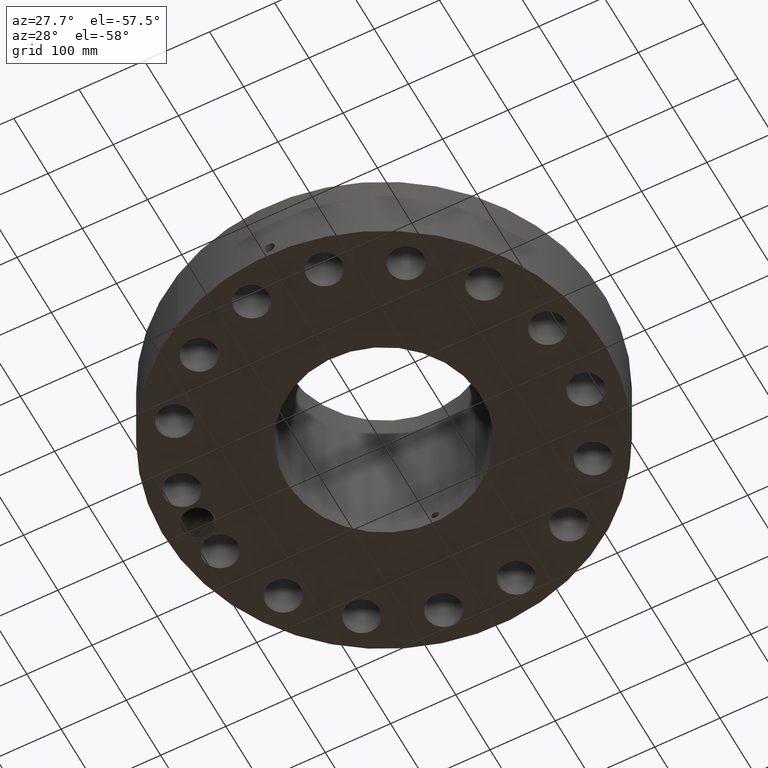
[diagram: clean part render]
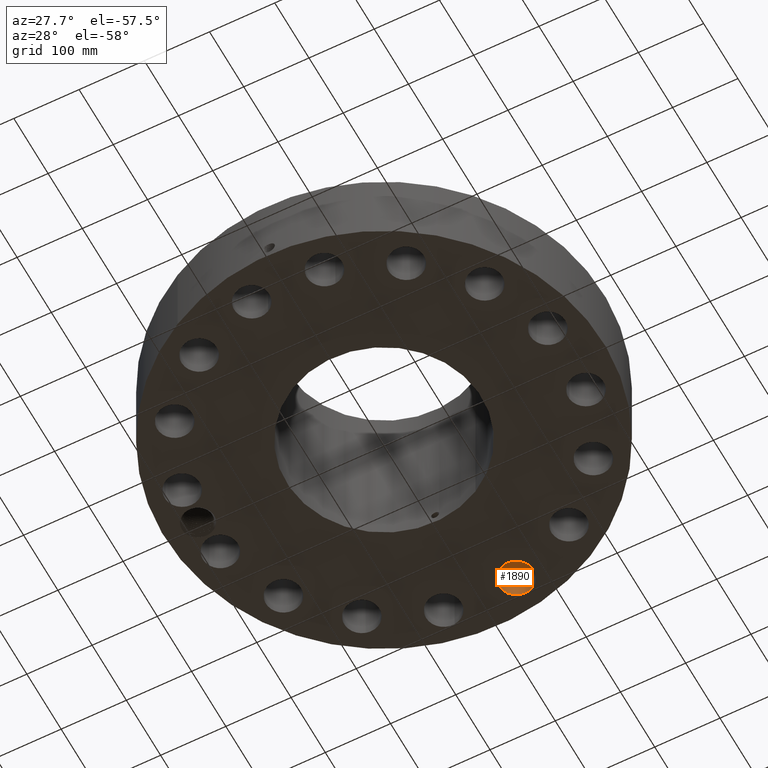
[diagram: same view with one face highlighted and labeled with its STEP entity id]
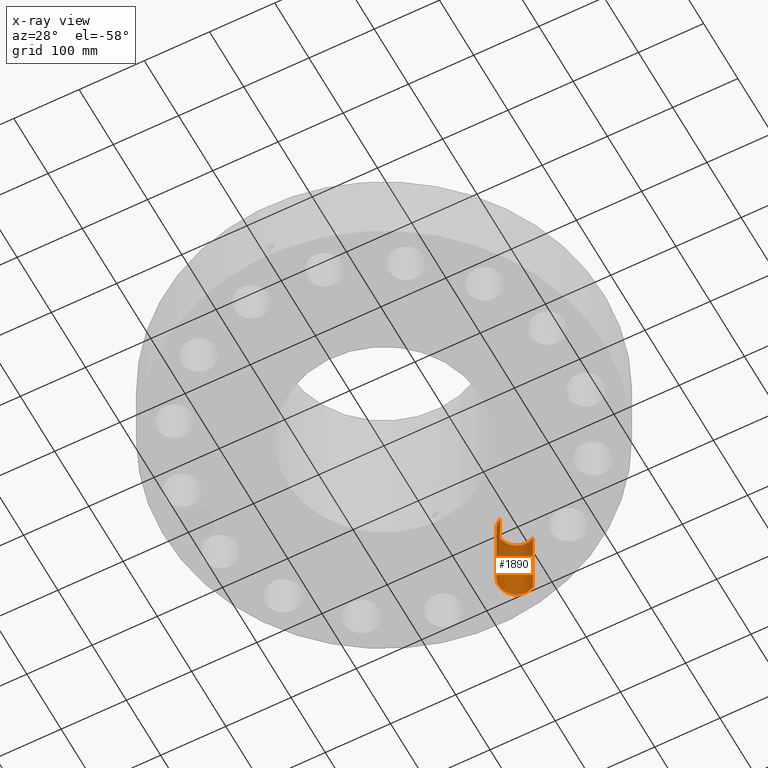
[diagram: x-ray of the same camera — body ghosted, the highlighted face saturated]
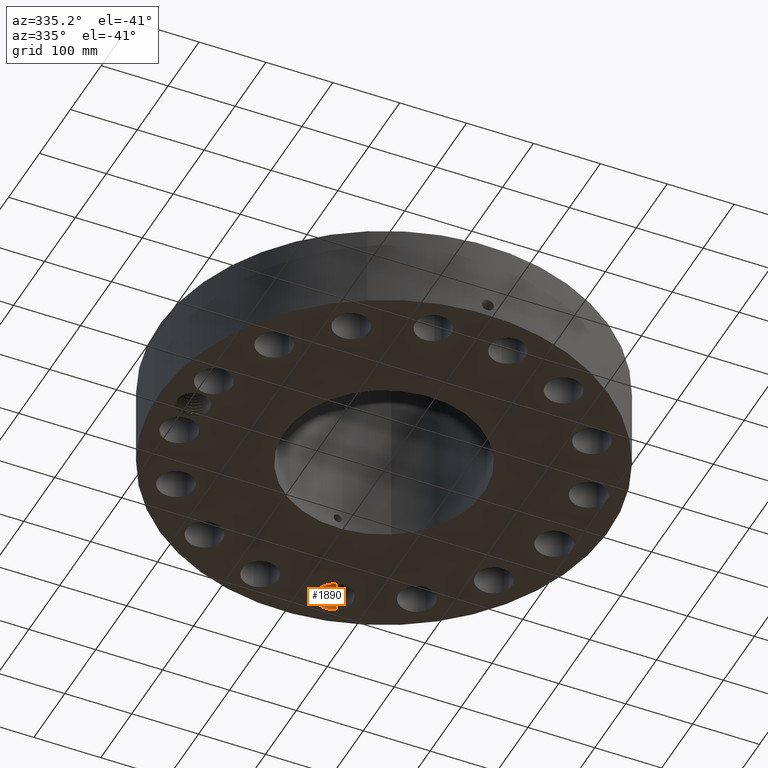
[diagram: same view with one face highlighted and labeled with its STEP entity id]
A machine part, auxiliary view. The second image highlights one B-rep face of the part: STEP entity #1890.
The next image is the same camera in x-ray: the body ghosted, the highlighted face saturated — about 29% of this face is hidden behind the body in this view.
A second angle (auxiliary view) of the same face is appended — the face is thin or edge-on in the first view.
In plain terms, the highlighted cylindrical surface (edge-blend (fillet) strip) has radius 26.924 mm, axis along (0, 0, -1).
Its self-contained STEP definition (entity closure, byte-faithful):
#478=AXIS2_PLACEMENT_3D('Circle Axis2P3D',#476,#477,$) ;
#960=AXIS2_PLACEMENT_3D('Circle Axis2P3D',#958,#959,$) ;
#1872=AXIS2_PLACEMENT_3D('Cylinder Axis2P3D',#1869,#1870,#1871) ;
#476=CARTESIAN_POINT('Axis2P3D Location',(2.19476612269,11.0338344046,0.250000000001)) ;
#480=CARTESIAN_POINT('Vertex',(1.68657505177,10.103596889,0.250000000001)) ;
#482=CARTESIAN_POINT('Vertex',(2.70295719361,11.9640719202,0.250000000001)) ;
#953=CARTESIAN_POINT('Vertex',(2.70295719361,11.9640719202,5.13000000002)) ;
#955=CARTESIAN_POINT('Vertex',(1.68657505177,10.103596889,5.13000000002)) ;
#958=CARTESIAN_POINT('Axis2P3D Location',(2.19476612269,11.0338344046,5.13000000002)) ;
#1869=CARTESIAN_POINT('Axis2P3D Location',(2.19476612269,11.0338344046,5.12606299215)) ;
#1874=CARTESIAN_POINT('Line Origine',(1.68657505177,10.103596889,2.69000000001)) ;
#1879=CARTESIAN_POINT('Line Origine',(2.70295719361,11.9640719202,2.69000000001)) ;
#477=DIRECTION('Axis2P3D Direction',(0.,0.,-0.0393700787402)) ;
#959=DIRECTION('Axis2P3D Direction',(0.,0.,-0.0393700787402)) ;
#1870=DIRECTION('Axis2P3D Direction',(0.,0.,-0.0393700787402)) ;
#1871=DIRECTION('Axis2P3D XDirection',(0.0188750212049,0.0345504945626,0.)) ;
#1875=DIRECTION('Vector Direction',(0.,0.,-0.0393700787402)) ;
#1880=DIRECTION('Vector Direction',(0.,0.,-0.0393700787402)) ;
#1876=VECTOR('Line Direction',#1875,0.0393700787402) ;
#1881=VECTOR('Line Direction',#1880,0.0393700787402) ;
#1885=ORIENTED_EDGE('',*,*,#1878,.F.) ;
#1886=ORIENTED_EDGE('',*,*,#484,.T.) ;
#1887=ORIENTED_EDGE('',*,*,#1883,.T.) ;
#1888=ORIENTED_EDGE('',*,*,#962,.F.) ;
#1890=ADVANCED_FACE('PartBody',(#1889),#1873,.F.) ;
#479=CIRCLE('generated circle',#478,1.06) ;
#961=CIRCLE('generated circle',#960,1.06) ;
#1873=CYLINDRICAL_SURFACE('generated cylinder',#1872,1.06) ;
#484=EDGE_CURVE('',#481,#483,#479,.T.) ;
#962=EDGE_CURVE('',#956,#954,#961,.T.) ;
#1878=EDGE_CURVE('',#481,#956,#1877,.F.) ;
#1883=EDGE_CURVE('',#483,#954,#1882,.F.) ;
#1884=EDGE_LOOP('',(#1885,#1886,#1887,#1888)) ;
#1889=FACE_OUTER_BOUND('',#1884,.T.) ;
#1877=LINE('Line',#1874,#1876) ;
#1882=LINE('Line',#1879,#1881) ;
#481=VERTEX_POINT('',#480) ;
#483=VERTEX_POINT('',#482) ;
#954=VERTEX_POINT('',#953) ;
#956=VERTEX_POINT('',#955) ;